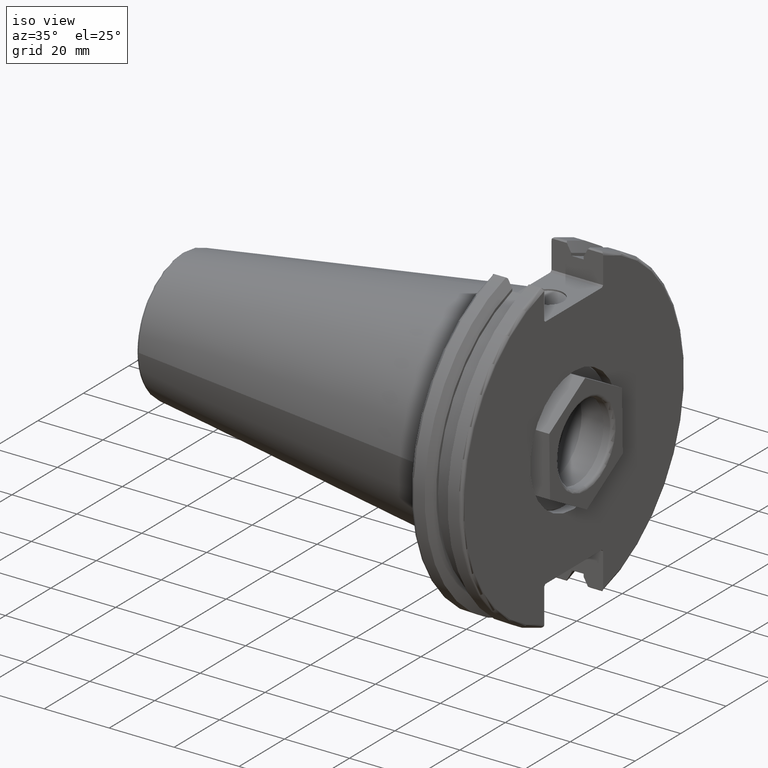
[diagram: clean part render]
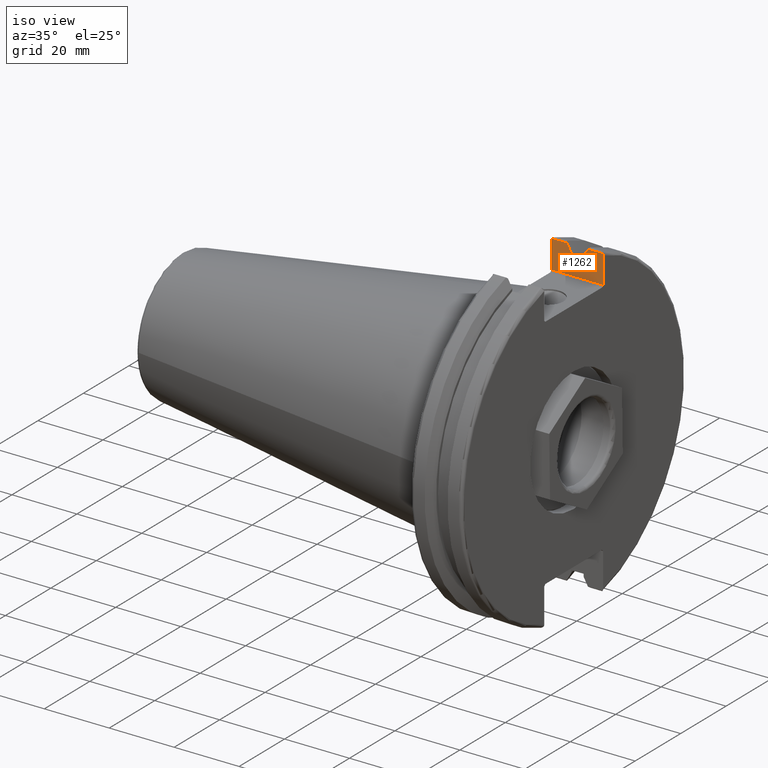
[diagram: same view with one face highlighted and labeled with its STEP entity id]
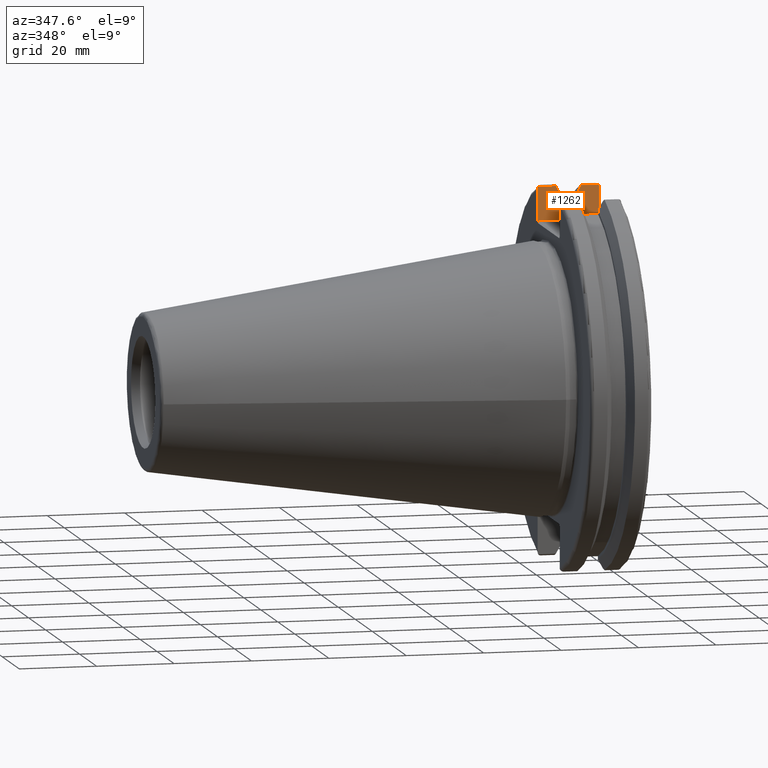
[diagram: same view with one face highlighted and labeled with its STEP entity id]
A machine part, iso view. The second image highlights one B-rep face of the part: STEP entity #1262.
A second angle (auxiliary view) of the same face is appended — the face is thin or edge-on in the first view.
In plain terms, the highlighted planar face has unit normal (0, 1, 0).
Its self-contained STEP definition (entity closure, byte-faithful):
#37=(
BOUNDED_CURVE()
B_SPLINE_CURVE(2,(#2227,#2228,#2229),.UNSPECIFIED.,.F.,.F.)
B_SPLINE_CURVE_WITH_KNOTS((3,3),(0.,0.275823910671549),.UNSPECIFIED.)
CURVE()
GEOMETRIC_REPRESENTATION_ITEM()
RATIONAL_B_SPLINE_CURVE((1.,1.00038235574567,1.00012873636816))
REPRESENTATION_ITEM('')
);
#38=(
BOUNDED_CURVE()
B_SPLINE_CURVE(2,(#2237,#2238,#2239),.UNSPECIFIED.,.F.,.F.)
B_SPLINE_CURVE_WITH_KNOTS((3,3),(0.0558332664488122,0.331657177124506),
 .UNSPECIFIED.)
CURVE()
GEOMETRIC_REPRESENTATION_ITEM()
RATIONAL_B_SPLINE_CURVE((1.00012873637341,1.00038235576131,1.))
REPRESENTATION_ITEM('')
);
#43=B_SPLINE_CURVE_WITH_KNOTS('',3,(#1957,#1958,#1959,#1960,#1961,#1962),
 .UNSPECIFIED.,.F.,.F.,(4,2,4),(0.0976892167532868,0.112000071948293,0.150881870548587),
 .UNSPECIFIED.);
#58=B_SPLINE_CURVE_WITH_KNOTS('',3,(#2186,#2187,#2188,#2189,#2190,#2191),
 .UNSPECIFIED.,.F.,.F.,(4,2,4),(0.452859340315923,0.491741138916218,0.506051994111224),
 .UNSPECIFIED.);
#97=PLANE('',#1432);
#162=FACE_OUTER_BOUND('',#243,.T.);
#243=EDGE_LOOP('',(#1018,#1019,#1020,#1021,#1022,#1023,#1024,#1025,#1026,
#1027,#1028,#1029));
#301=LINE('',#1938,#393);
#316=LINE('',#2027,#408);
#344=LINE('',#2221,#436);
#346=LINE('',#2225,#438);
#347=LINE('',#2231,#439);
#348=LINE('',#2233,#440);
#349=LINE('',#2235,#441);
#350=LINE('',#2240,#442);
#393=VECTOR('',#1571,10.);
#408=VECTOR('',#1604,10.);
#436=VECTOR('',#1688,10.);
#438=VECTOR('',#1692,10.);
#439=VECTOR('',#1693,10.);
#440=VECTOR('',#1694,10.);
#441=VECTOR('',#1695,10.);
#442=VECTOR('',#1696,10.);
#554=VERTEX_POINT('',#1935);
#555=VERTEX_POINT('',#1937);
#562=VERTEX_POINT('',#1955);
#563=VERTEX_POINT('',#1956);
#577=VERTEX_POINT('',#2026);
#608=VERTEX_POINT('',#2166);
#617=VERTEX_POINT('',#2224);
#618=VERTEX_POINT('',#2226);
#619=VERTEX_POINT('',#2230);
#620=VERTEX_POINT('',#2232);
#621=VERTEX_POINT('',#2234);
#622=VERTEX_POINT('',#2236);
#682=EDGE_CURVE('',#554,#555,#301,.T.);
#691=EDGE_CURVE('',#562,#563,#43,.T.);
#709=EDGE_CURVE('',#563,#577,#316,.T.);
#753=EDGE_CURVE('',#555,#608,#58,.T.);
#766=EDGE_CURVE('',#577,#554,#344,.T.);
#768=EDGE_CURVE('',#617,#562,#346,.T.);
#769=EDGE_CURVE('',#618,#617,#37,.T.);
#770=EDGE_CURVE('',#619,#618,#347,.T.);
#771=EDGE_CURVE('',#620,#619,#348,.T.);
#772=EDGE_CURVE('',#621,#620,#349,.T.);
#773=EDGE_CURVE('',#622,#621,#38,.T.);
#774=EDGE_CURVE('',#608,#622,#350,.T.);
#1018=ORIENTED_EDGE('',*,*,#691,.F.);
#1019=ORIENTED_EDGE('',*,*,#768,.F.);
#1020=ORIENTED_EDGE('',*,*,#769,.F.);
#1021=ORIENTED_EDGE('',*,*,#770,.F.);
#1022=ORIENTED_EDGE('',*,*,#771,.F.);
#1023=ORIENTED_EDGE('',*,*,#772,.F.);
#1024=ORIENTED_EDGE('',*,*,#773,.F.);
#1025=ORIENTED_EDGE('',*,*,#774,.F.);
#1026=ORIENTED_EDGE('',*,*,#753,.F.);
#1027=ORIENTED_EDGE('',*,*,#682,.F.);
#1028=ORIENTED_EDGE('',*,*,#766,.F.);
#1029=ORIENTED_EDGE('',*,*,#709,.F.);
#1262=ADVANCED_FACE('',(#162),#97,.F.);
#1432=AXIS2_PLACEMENT_3D('',#2223,#1690,#1691);
#1571=DIRECTION('',(0.,0.,1.));
#1604=DIRECTION('',(0.,0.,-1.));
#1688=DIRECTION('',(-1.,0.,0.));
#1690=DIRECTION('center_axis',(0.,1.,0.));
#1691=DIRECTION('ref_axis',(-1.,0.,0.));
#1692=DIRECTION('',(1.,0.,0.));
#1693=DIRECTION('',(0.,0.,1.));
#1694=DIRECTION('',(1.,0.,0.));
#1695=DIRECTION('',(0.,0.,-1.));
#1696=DIRECTION('',(1.,0.,0.));
#1935=CARTESIAN_POINT('',(3.175,12.95,38.219));
#1937=CARTESIAN_POINT('',(3.175,12.95,46.4407434937254));
#1938=CARTESIAN_POINT('',(3.175,12.95,18.8595));
#1955=CARTESIAN_POINT('',(18.9055020570566,12.95,46.9780755322918));
#1956=CARTESIAN_POINT('',(19.05,12.95,46.4407434937254));
#1957=CARTESIAN_POINT('Ctrl Pts',(18.9055020570566,12.95,46.9780755322918));
#1958=CARTESIAN_POINT('Ctrl Pts',(18.9315844351616,12.95,46.9333752207329));
#1959=CARTESIAN_POINT('Ctrl Pts',(18.9538432708766,12.95,46.887363294568));
#1960=CARTESIAN_POINT('Ctrl Pts',(19.0204646992875,12.95,46.7230464903732));
#1961=CARTESIAN_POINT('Ctrl Pts',(19.05,12.95,46.5703494890597));
#1962=CARTESIAN_POINT('Ctrl Pts',(19.05,12.95,46.4407434937254));
#2026=CARTESIAN_POINT('',(19.05,12.95,38.219));
#2027=CARTESIAN_POINT('',(19.05,12.95,18.8595));
#2166=CARTESIAN_POINT('',(3.31949794294344,12.95,46.9780755322918));
#2186=CARTESIAN_POINT('Ctrl Pts',(3.175,12.95,46.4407434937254));
#2187=CARTESIAN_POINT('Ctrl Pts',(3.175,12.95,46.5703494890597));
#2188=CARTESIAN_POINT('Ctrl Pts',(3.20453530071253,12.95,46.7230464903732));
#2189=CARTESIAN_POINT('Ctrl Pts',(3.27115672912336,12.95,46.887363294568));
#2190=CARTESIAN_POINT('Ctrl Pts',(3.29341556483839,12.95,46.9333752207329));
#2191=CARTESIAN_POINT('Ctrl Pts',(3.31949794294344,12.95,46.9780755322918));
#2221=CARTESIAN_POINT('',(19.06875,12.95,38.219));
#2223=CARTESIAN_POINT('Origin',(20.05,12.95,37.719));
#2224=CARTESIAN_POINT('',(14.3750103943757,12.95,46.9780755322918));
#2225=CARTESIAN_POINT('',(16.8517045170244,12.95,46.9780755322918));
#2226=CARTESIAN_POINT('',(13.0423,12.95,44.5791147973604));
#2227=CARTESIAN_POINT('Ctrl Pts',(13.0423,12.95,44.5791147973604));
#2228=CARTESIAN_POINT('Ctrl Pts',(13.6911955094858,12.95,45.7494966802945));
#2229=CARTESIAN_POINT('Ctrl Pts',(14.3750103943757,12.95,46.9780755322917));
#2230=CARTESIAN_POINT('',(13.0423,12.95,43.7678716897452));
#2231=CARTESIAN_POINT('',(13.0423,12.95,18.8595));
#2232=CARTESIAN_POINT('',(9.2123,12.95,43.7678716897452));
#2233=CARTESIAN_POINT('',(11.1273,12.95,43.7678716897452));
#2234=CARTESIAN_POINT('',(9.2123,12.95,44.5791147973604));
#2235=CARTESIAN_POINT('',(9.2123,12.95,18.8595));
#2236=CARTESIAN_POINT('',(7.87958960562425,12.95,46.9780755322918));
#2237=CARTESIAN_POINT('Ctrl Pts',(7.87958960562425,12.95,46.9780755322918));
#2238=CARTESIAN_POINT('Ctrl Pts',(8.56340449055477,12.95,45.7494966802216));
#2239=CARTESIAN_POINT('Ctrl Pts',(9.2123,12.95,44.5791147973604));
#2240=CARTESIAN_POINT('',(5.38809548297564,12.95,46.9780755322918));